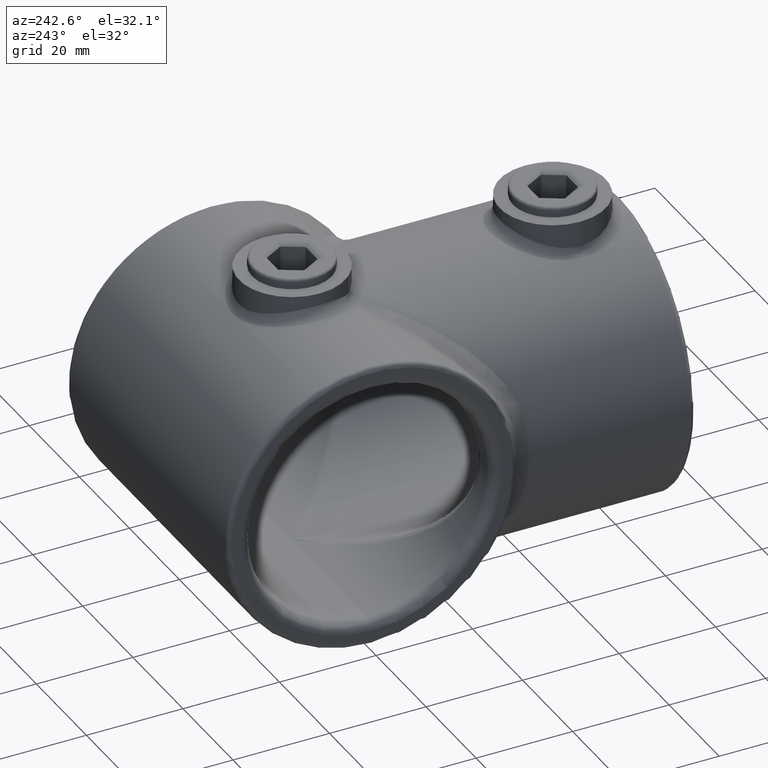
[diagram: clean part render]
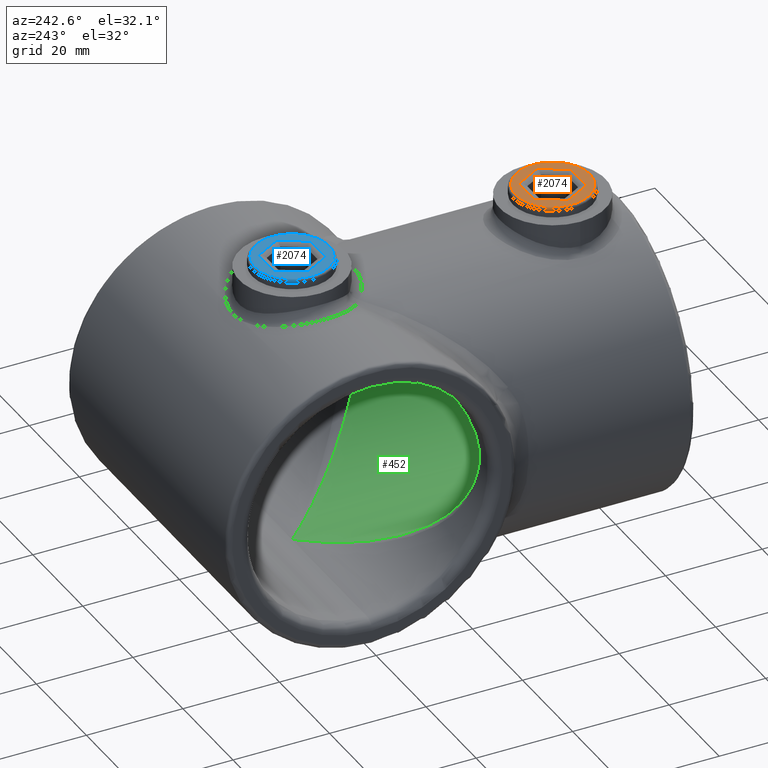
[diagram: same view with three faces highlighted in distinct colors, each labeled with its STEP entity id]
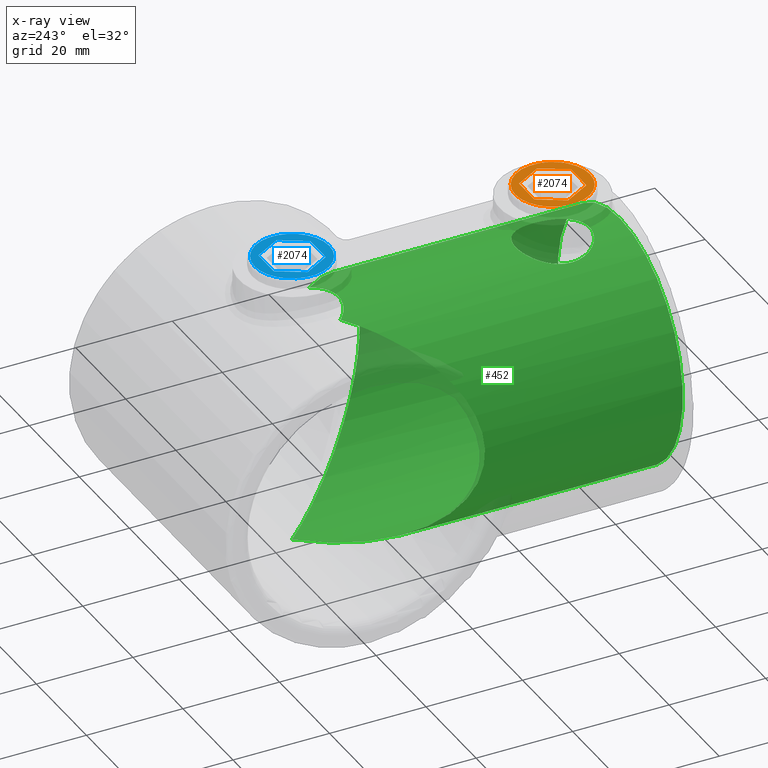
[diagram: x-ray of the same camera — body ghosted, the three highlighted faces saturated]
A machine part, auxiliary view with three faces highlighted in distinct colors.
The next image is the same camera in x-ray (body ghosted, the three faces saturated) — at least one of them is partly hidden behind the body in this view.
Their STEP definitions:

[orange] entity #2074 — the highlighted planar face has unit normal (0, 0, 1).
#73 = ORIENTED_EDGE ( 'NONE', *, *, #3537, .T. ) ;
#93 = CARTESIAN_POINT ( 'NONE',  ( 6.202525231651947912, 12.99999999999999822, 3.469446951953614189E-15 ) ) ;
#172 = VERTEX_POINT ( 'NONE', #93 ) ;
#275 = VECTOR ( 'NONE', #3235, 1000.000000000000227 ) ;
#354 = DIRECTION ( 'NONE',  ( 0.000000000000000000, 1.000000000000000000, 0.000000000000000000 ) ) ;
#365 = EDGE_CURVE ( 'NONE', #172, #822, #1710, .T. ) ;
#474 = VERTEX_POINT ( 'NONE', #3267 ) ;
#499 = CARTESIAN_POINT ( 'NONE',  ( -3.101262615825973956, 12.99999999999999822, 5.371544418224549311 ) ) ;
#523 = FACE_BOUND ( 'NONE', #1363, .T. ) ;
#621 = LINE ( 'NONE', #2669, #2212 ) ;
#626 = CARTESIAN_POINT ( 'NONE',  ( -3.338806356441556655, 12.99999999999999822, -4.960106590458406295 ) ) ;
#767 = ORIENTED_EDGE ( 'NONE', *, *, #2850, .T. ) ;
#789 = EDGE_CURVE ( 'NONE', #1464, #1358, #621, .T. ) ;
#822 = VERTEX_POINT ( 'NONE', #3206 ) ;
#874 = ORIENTED_EDGE ( 'NONE', *, *, #1795, .T. ) ;
#880 = CARTESIAN_POINT ( 'NONE',  ( 0.000000000000000000, 12.99999999999999822, 0.000000000000000000 ) ) ;
#892 = CARTESIAN_POINT ( 'NONE',  ( -2.626175134594816107, 12.99999999999999822, 5.371544418224551087 ) ) ;
#906 = VECTOR ( 'NONE', #3482, 1000.000000000000000 ) ;
#908 = CARTESIAN_POINT ( 'NONE',  ( 5.964981491036368766, 12.99999999999999822, -0.4114378277661444594 ) ) ;
#974 = DIRECTION ( 'NONE',  ( -1.110223024625156294E-16, 0.000000000000000000, 1.000000000000000000 ) ) ;
#1068 = CARTESIAN_POINT ( 'NONE',  ( -5.964981491036358108, 12.99999999999999822, 0.4114378277661513428 ) ) ;
#1265 = ORIENTED_EDGE ( 'NONE', *, *, #3778, .T. ) ;
#1358 = VERTEX_POINT ( 'NONE', #2866 ) ;
#1363 = EDGE_LOOP ( 'NONE', ( #874, #767, #2966, #3181, #1575, #1265 ) ) ;
#1381 = DIRECTION ( 'NONE',  ( -0.4999999999999996669, 0.000000000000000000, -0.8660254037844388186 ) ) ;
#1399 = CIRCLE ( 'NONE', #3635, 7.750000000000001776 ) ;
#1464 = VERTEX_POINT ( 'NONE', #3792 ) ;
#1575 = ORIENTED_EDGE ( 'NONE', *, *, #365, .T. ) ;
#1613 = LINE ( 'NONE', #1068, #2562 ) ;
#1710 = LINE ( 'NONE', #2931, #275 ) ;
#1748 = VECTOR ( 'NONE', #3527, 1000.000000000000000 ) ;
#1795 = EDGE_CURVE ( 'NONE', #2822, #474, #1613, .T. ) ;
#1846 = LINE ( 'NONE', #908, #1748 ) ;
#1954 = CARTESIAN_POINT ( 'NONE',  ( 0.000000000000000000, 12.99999999999999822, 0.000000000000000000 ) ) ;
#2074 = ADVANCED_FACE ( 'NONE', ( #523, #3554 ), #2906, .T. ) ;
#2174 = DIRECTION ( 'NONE',  ( 0.000000000000000000, 1.000000000000000000, 0.000000000000000000 ) ) ;
#2212 = VECTOR ( 'NONE', #2871, 1000.000000000000000 ) ;
#2224 = EDGE_LOOP ( 'NONE', ( #73 ) ) ;
#2416 = VECTOR ( 'NONE', #2836, 1000.000000000000000 ) ;
#2562 = VECTOR ( 'NONE', #1381, 1000.000000000000000 ) ;
#2669 = CARTESIAN_POINT ( 'NONE',  ( 2.626175134594816107, 12.99999999999999822, -5.371544418224551087 ) ) ;
#2822 = VERTEX_POINT ( 'NONE', #499 ) ;
#2836 = DIRECTION ( 'NONE',  ( 0.4999999999999998335, 0.000000000000000000, -0.8660254037844387076 ) ) ;
#2850 = EDGE_CURVE ( 'NONE', #474, #1464, #3262, .T. ) ;
#2866 = CARTESIAN_POINT ( 'NONE',  ( 3.101262615825977509, 12.99999999999999822, -5.371544418224558193 ) ) ;
#2871 = DIRECTION ( 'NONE',  ( 1.000000000000000000, 0.000000000000000000, 1.110223024625156294E-16 ) ) ;
#2906 = PLANE ( 'NONE',  #4015 ) ;
#2931 = CARTESIAN_POINT ( 'NONE',  ( 3.338806356441556655, 12.99999999999999822, 4.960106590458408071 ) ) ;
#2966 = ORIENTED_EDGE ( 'NONE', *, *, #789, .T. ) ;
#3005 = VERTEX_POINT ( 'NONE', #3548 ) ;
#3181 = ORIENTED_EDGE ( 'NONE', *, *, #3224, .T. ) ;
#3206 = CARTESIAN_POINT ( 'NONE',  ( 3.101262615825984614, 12.99999999999999822, 5.371544418224551087 ) ) ;
#3224 = EDGE_CURVE ( 'NONE', #1358, #172, #1846, .T. ) ;
#3235 = DIRECTION ( 'NONE',  ( -0.4999999999999992784, 0.000000000000000000, 0.8660254037844389297 ) ) ;
#3262 = LINE ( 'NONE', #626, #2416 ) ;
#3267 = CARTESIAN_POINT ( 'NONE',  ( -6.202525231651947912, 12.99999999999999822, 0.000000000000000000 ) ) ;
#3482 = DIRECTION ( 'NONE',  ( -1.000000000000000000, 0.000000000000000000, -2.775557561562891351E-16 ) ) ;
#3527 = DIRECTION ( 'NONE',  ( 0.4999999999999997224, 0.000000000000000000, 0.8660254037844388186 ) ) ;
#3537 = EDGE_CURVE ( 'NONE', #3005, #3005, #1399, .T. ) ;
#3548 = CARTESIAN_POINT ( 'NONE',  ( -8.604228440844963188E-16, 12.99999999999999822, 7.750000000000001776 ) ) ;
#3554 = FACE_OUTER_BOUND ( 'NONE', #2224, .T. ) ;
#3635 = AXIS2_PLACEMENT_3D ( 'NONE', #880, #2174, #4051 ) ;
#3778 = EDGE_CURVE ( 'NONE', #822, #2822, #4081, .T. ) ;
#3792 = CARTESIAN_POINT ( 'NONE',  ( -3.101262615825967295, 12.99999999999999822, -5.371544418224547535 ) ) ;
#4015 = AXIS2_PLACEMENT_3D ( 'NONE', #1954, #354, #974 ) ;
#4051 = DIRECTION ( 'NONE',  ( -1.110223024625156294E-16, 0.000000000000000000, 1.000000000000000000 ) ) ;
#4081 = LINE ( 'NONE', #892, #906 ) ;

[blue] entity #2074 — the highlighted planar face has unit normal (0, 0, 1).
#73 = ORIENTED_EDGE ( 'NONE', *, *, #3537, .T. ) ;
#93 = CARTESIAN_POINT ( 'NONE',  ( 6.202525231651947912, 12.99999999999999822, 3.469446951953614189E-15 ) ) ;
#172 = VERTEX_POINT ( 'NONE', #93 ) ;
#275 = VECTOR ( 'NONE', #3235, 1000.000000000000227 ) ;
#354 = DIRECTION ( 'NONE',  ( 0.000000000000000000, 1.000000000000000000, 0.000000000000000000 ) ) ;
#365 = EDGE_CURVE ( 'NONE', #172, #822, #1710, .T. ) ;
#474 = VERTEX_POINT ( 'NONE', #3267 ) ;
#499 = CARTESIAN_POINT ( 'NONE',  ( -3.101262615825973956, 12.99999999999999822, 5.371544418224549311 ) ) ;
#523 = FACE_BOUND ( 'NONE', #1363, .T. ) ;
#621 = LINE ( 'NONE', #2669, #2212 ) ;
#626 = CARTESIAN_POINT ( 'NONE',  ( -3.338806356441556655, 12.99999999999999822, -4.960106590458406295 ) ) ;
#767 = ORIENTED_EDGE ( 'NONE', *, *, #2850, .T. ) ;
#789 = EDGE_CURVE ( 'NONE', #1464, #1358, #621, .T. ) ;
#822 = VERTEX_POINT ( 'NONE', #3206 ) ;
#874 = ORIENTED_EDGE ( 'NONE', *, *, #1795, .T. ) ;
#880 = CARTESIAN_POINT ( 'NONE',  ( 0.000000000000000000, 12.99999999999999822, 0.000000000000000000 ) ) ;
#892 = CARTESIAN_POINT ( 'NONE',  ( -2.626175134594816107, 12.99999999999999822, 5.371544418224551087 ) ) ;
#906 = VECTOR ( 'NONE', #3482, 1000.000000000000000 ) ;
#908 = CARTESIAN_POINT ( 'NONE',  ( 5.964981491036368766, 12.99999999999999822, -0.4114378277661444594 ) ) ;
#974 = DIRECTION ( 'NONE',  ( -1.110223024625156294E-16, 0.000000000000000000, 1.000000000000000000 ) ) ;
#1068 = CARTESIAN_POINT ( 'NONE',  ( -5.964981491036358108, 12.99999999999999822, 0.4114378277661513428 ) ) ;
#1265 = ORIENTED_EDGE ( 'NONE', *, *, #3778, .T. ) ;
#1358 = VERTEX_POINT ( 'NONE', #2866 ) ;
#1363 = EDGE_LOOP ( 'NONE', ( #874, #767, #2966, #3181, #1575, #1265 ) ) ;
#1381 = DIRECTION ( 'NONE',  ( -0.4999999999999996669, 0.000000000000000000, -0.8660254037844388186 ) ) ;
#1399 = CIRCLE ( 'NONE', #3635, 7.750000000000001776 ) ;
#1464 = VERTEX_POINT ( 'NONE', #3792 ) ;
#1575 = ORIENTED_EDGE ( 'NONE', *, *, #365, .T. ) ;
#1613 = LINE ( 'NONE', #1068, #2562 ) ;
#1710 = LINE ( 'NONE', #2931, #275 ) ;
#1748 = VECTOR ( 'NONE', #3527, 1000.000000000000000 ) ;
#1795 = EDGE_CURVE ( 'NONE', #2822, #474, #1613, .T. ) ;
#1846 = LINE ( 'NONE', #908, #1748 ) ;
#1954 = CARTESIAN_POINT ( 'NONE',  ( 0.000000000000000000, 12.99999999999999822, 0.000000000000000000 ) ) ;
#2074 = ADVANCED_FACE ( 'NONE', ( #523, #3554 ), #2906, .T. ) ;
#2174 = DIRECTION ( 'NONE',  ( 0.000000000000000000, 1.000000000000000000, 0.000000000000000000 ) ) ;
#2212 = VECTOR ( 'NONE', #2871, 1000.000000000000000 ) ;
#2224 = EDGE_LOOP ( 'NONE', ( #73 ) ) ;
#2416 = VECTOR ( 'NONE', #2836, 1000.000000000000000 ) ;
#2562 = VECTOR ( 'NONE', #1381, 1000.000000000000000 ) ;
#2669 = CARTESIAN_POINT ( 'NONE',  ( 2.626175134594816107, 12.99999999999999822, -5.371544418224551087 ) ) ;
#2822 = VERTEX_POINT ( 'NONE', #499 ) ;
#2836 = DIRECTION ( 'NONE',  ( 0.4999999999999998335, 0.000000000000000000, -0.8660254037844387076 ) ) ;
#2850 = EDGE_CURVE ( 'NONE', #474, #1464, #3262, .T. ) ;
#2866 = CARTESIAN_POINT ( 'NONE',  ( 3.101262615825977509, 12.99999999999999822, -5.371544418224558193 ) ) ;
#2871 = DIRECTION ( 'NONE',  ( 1.000000000000000000, 0.000000000000000000, 1.110223024625156294E-16 ) ) ;
#2906 = PLANE ( 'NONE',  #4015 ) ;
#2931 = CARTESIAN_POINT ( 'NONE',  ( 3.338806356441556655, 12.99999999999999822, 4.960106590458408071 ) ) ;
#2966 = ORIENTED_EDGE ( 'NONE', *, *, #789, .T. ) ;
#3005 = VERTEX_POINT ( 'NONE', #3548 ) ;
#3181 = ORIENTED_EDGE ( 'NONE', *, *, #3224, .T. ) ;
#3206 = CARTESIAN_POINT ( 'NONE',  ( 3.101262615825984614, 12.99999999999999822, 5.371544418224551087 ) ) ;
#3224 = EDGE_CURVE ( 'NONE', #1358, #172, #1846, .T. ) ;
#3235 = DIRECTION ( 'NONE',  ( -0.4999999999999992784, 0.000000000000000000, 0.8660254037844389297 ) ) ;
#3262 = LINE ( 'NONE', #626, #2416 ) ;
#3267 = CARTESIAN_POINT ( 'NONE',  ( -6.202525231651947912, 12.99999999999999822, 0.000000000000000000 ) ) ;
#3482 = DIRECTION ( 'NONE',  ( -1.000000000000000000, 0.000000000000000000, -2.775557561562891351E-16 ) ) ;
#3527 = DIRECTION ( 'NONE',  ( 0.4999999999999997224, 0.000000000000000000, 0.8660254037844388186 ) ) ;
#3537 = EDGE_CURVE ( 'NONE', #3005, #3005, #1399, .T. ) ;
#3548 = CARTESIAN_POINT ( 'NONE',  ( -8.604228440844963188E-16, 12.99999999999999822, 7.750000000000001776 ) ) ;
#3554 = FACE_OUTER_BOUND ( 'NONE', #2224, .T. ) ;
#3635 = AXIS2_PLACEMENT_3D ( 'NONE', #880, #2174, #4051 ) ;
#3778 = EDGE_CURVE ( 'NONE', #822, #2822, #4081, .T. ) ;
#3792 = CARTESIAN_POINT ( 'NONE',  ( -3.101262615825967295, 12.99999999999999822, -5.371544418224547535 ) ) ;
#4015 = AXIS2_PLACEMENT_3D ( 'NONE', #1954, #354, #974 ) ;
#4051 = DIRECTION ( 'NONE',  ( -1.110223024625156294E-16, 0.000000000000000000, 1.000000000000000000 ) ) ;
#4081 = LINE ( 'NONE', #892, #906 ) ;

[green] entity #452 — the highlighted cylindrical surface (bore or boss wall) has radius 25 mm, axis along (-0, -1, -0).
#20 = EDGE_CURVE ( 'NONE', #437, #2561, #2781, .T. ) ;
#32 = DIRECTION ( 'NONE',  ( -0.000000000000000000, -1.000000000000000000, -0.000000000000000000 ) ) ;
#144 = CARTESIAN_POINT ( 'NONE',  ( 5.898972391248183733, 60.75908464470701631, 24.29764128695998693 ) ) ;
#154 = CARTESIAN_POINT ( 'NONE',  ( -2.921343065034001985, 58.88486869193023665, 24.83469711102791422 ) ) ;
#191 = CARTESIAN_POINT ( 'NONE',  ( 4.659846650615250496, 7.943803693538966648, 24.56550976411219267 ) ) ;
#193 = CARTESIAN_POINT ( 'NONE',  ( 0.000000000000000000, 68.00000000000000000, -24.99999999999999645 ) ) ;
#204 = CARTESIAN_POINT ( 'NONE',  ( -4.447481860664472819, 7.801466709018616719, 24.60210313679657190 ) ) ;
#218 = CARTESIAN_POINT ( 'NONE',  ( -5.030792869501231834, 8.264707833344070664, 24.48937507106241895 ) ) ;
#232 = CARTESIAN_POINT ( 'NONE',  ( -7.637240855225110536, 13.99693461799787109, 23.80487799466419929 ) ) ;
#240 = CARTESIAN_POINT ( 'NONE',  ( 7.624999999999986677, 13.99999999999999822, 23.80880876902496368 ) ) ;
#246 = CARTESIAN_POINT ( 'NONE',  ( -0.2531567682109435169, 21.62493822422564804, 24.99998115838933188 ) ) ;
#279 = CARTESIAN_POINT ( 'NONE',  ( -6.301761823074548907, 61.19409723107948906, 24.19272200322319577 ) ) ;
#332 =( BOUNDED_CURVE ( )  B_SPLINE_CURVE ( 3, ( #193, #2443, #3021, #279 ),
 .UNSPECIFIED., .F., .F. ) 
 B_SPLINE_CURVE_WITH_KNOTS ( ( 4, 4 ),
 ( 4.712388980384689674, 7.599162411308274301 ),
 .UNSPECIFIED. ) 
 CURVE ( )  GEOMETRIC_REPRESENTATION_ITEM ( )  RATIONAL_B_SPLINE_CURVE ( ( 1.000000000000000000, 0.4180434532470354014, 0.4180434532470354014, 1.000000000000000000 ) ) 
 REPRESENTATION_ITEM ( '' )  );
#437 = VERTEX_POINT ( 'NONE', #1296 ) ;
#448 = CARTESIAN_POINT ( 'NONE',  ( -1.197535897547674866, 58.45677539210313967, 24.97309209629023385 ) ) ;
#452 = ADVANCED_FACE ( 'NONE', ( #582, #2717, #1857 ), #4041, .F. ) ;
#463 = VERTEX_POINT ( 'NONE', #2574 ) ;
#517 = CARTESIAN_POINT ( 'NONE',  ( 6.198552640534425784, 9.552486101007614749, 24.21979310777088656 ) ) ;
#534 = CARTESIAN_POINT ( 'NONE',  ( 1.987973315103579219, 6.634452307421962125, 24.92199381285342596 ) ) ;
#550 = CARTESIAN_POINT ( 'NONE',  ( -7.612543128637531353, 13.49699795111162892, 23.81280872462432541 ) ) ;
#556 = CARTESIAN_POINT ( 'NONE',  ( 5.040554526462226015, 19.74262615698709311, 24.48920166236201368 ) ) ;
#559 = CARTESIAN_POINT ( 'NONE',  ( -4.648761521243394590, 20.04908387233548339, 24.56475787222400342 ) ) ;
#573 = CARTESIAN_POINT ( 'NONE',  ( -1.008505099369361835, 21.56220618766863950, 24.98090808176181099 ) ) ;
#582 = FACE_OUTER_BOUND ( 'NONE', #2564, .T. ) ;
#766 = CARTESIAN_POINT ( 'NONE',  ( 3.183501431581415186, 59.00453672251656911, 24.79795829147836983 ) ) ;
#779 = CARTESIAN_POINT ( 'NONE',  ( -4.506386825139651719, 59.69023257769597990, 24.59185877542659782 ) ) ;
#816 = ORIENTED_EDGE ( 'NONE', *, *, #4110, .F. ) ;
#826 = CARTESIAN_POINT ( 'NONE',  ( 6.613380367851313224, 10.17232916946265142, 24.11109562406745610 ) ) ;
#838 = CARTESIAN_POINT ( 'NONE',  ( -5.746456444308763345, 19.03651626538897901, 24.33326843753103219 ) ) ;
#847 = CARTESIAN_POINT ( 'NONE',  ( 7.574939601106295939, 12.99508855892533177, 23.82500341734851190 ) ) ;
#868 = CARTESIAN_POINT ( 'NONE',  ( -4.450013709171524390, 20.19670438459453976, 24.60164274860606426 ) ) ;
#886 = CARTESIAN_POINT ( 'NONE',  ( 3.388449417178503786, 7.151251449488688294, 24.77360043833564518 ) ) ;
#1084 = CARTESIAN_POINT ( 'NONE',  ( 4.494035789254406943, 59.68241188247445450, 24.59412628641595333 ) ) ;
#1089 = CARTESIAN_POINT ( 'NONE',  ( 0.000000000000000000, 68.00000000000000000, -24.99999999999999645 ) ) ;
#1100 = CARTESIAN_POINT ( 'NONE',  ( -6.301761823074548907, 61.19409723107948906, 24.19272200322319577 ) ) ;
#1110 = CARTESIAN_POINT ( 'NONE',  ( -5.461757653138502810, 60.36938346026881419, 24.40086862338844753 ) ) ;
#1143 = CARTESIAN_POINT ( 'NONE',  ( 5.041752346281424657, 8.258441854446843422, 24.48895214811044596 ) ) ;
#1157 = CARTESIAN_POINT ( 'NONE',  ( 5.565872056497592091, 8.782459759072326122, 24.37320412377327727 ) ) ;
#1165 = VERTEX_POINT ( 'NONE', #1089 ) ;
#1172 = CARTESIAN_POINT ( 'NONE',  ( -4.036048993750373626, 7.526035342976403086, 24.67293825580087230 ) ) ;
#1184 = CARTESIAN_POINT ( 'NONE',  ( -3.833767512333940086, 20.60964602901277232, 24.70781290257799512 ) ) ;
#1193 = CARTESIAN_POINT ( 'NONE',  ( 3.824793484731123794, 20.61536953270599426, 24.70930600292921042 ) ) ;
#1196 = CARTESIAN_POINT ( 'NONE',  ( 0.9977691887047605013, 21.57603748124650167, 24.98493532761329661 ) ) ;
#1217 = CARTESIAN_POINT ( 'NONE',  ( 6.846823129338923231, 17.39260563976431584, 24.04497623410375340 ) ) ;
#1296 = CARTESIAN_POINT ( 'NONE',  ( -6.301761823074548907, 61.19409723107948906, 24.19272200322319577 ) ) ;
#1318 = DIRECTION ( 'NONE',  ( 0.000000000000000000, 0.000000000000000000, 1.000000000000000000 ) ) ;
#1395 = CARTESIAN_POINT ( 'NONE',  ( 4.743714161365892856, 59.84585950284035505, 24.54702652265839546 ) ) ;
#1412 = CARTESIAN_POINT ( 'NONE',  ( 1.178473716321879472, 58.43770054534978442, 24.97911698871308062 ) ) ;
#1425 = CARTESIAN_POINT ( 'NONE',  ( -2.362536365921073855, 58.69741775949065499, 24.89489372215549068 ) ) ;
#1451 = CARTESIAN_POINT ( 'NONE',  ( 2.346506560850491585, 58.70918116935583697, 24.89124044382296219 ) ) ;
#1466 = CARTESIAN_POINT ( 'NONE',  ( 7.221044020827889653, 11.53824818125508678, 23.93454355583152804 ) ) ;
#1474 = ORIENTED_EDGE ( 'NONE', *, *, #20, .T. ) ;
#1481 = CARTESIAN_POINT ( 'NONE',  ( 5.732390297541706481, 8.965878091797346627, 24.33446512792617611 ) ) ;
#1493 = CARTESIAN_POINT ( 'NONE',  ( -1.984911021543398268, 6.620927443614977648, 24.92591712721058173 ) ) ;
#1503 = CARTESIAN_POINT ( 'NONE',  ( 4.658340416036716114, 20.05739414463142722, 24.56580373029862230 ) ) ;
#1508 = CARTESIAN_POINT ( 'NONE',  ( -2.461853608082956058, 6.765917713638597064, 24.88286969601450593 ) ) ;
#1526 = CARTESIAN_POINT ( 'NONE',  ( 6.048749732343347674, 9.350773334685374749, 24.25776408206416690 ) ) ;
#1609 = CARTESIAN_POINT ( 'NONE',  ( 0.000000000000000000, 0.000000000000000000, 0.000000000000000000 ) ) ;
#1654 = DIRECTION ( 'NONE',  ( 0.000000000000000000, 0.000000000000000000, -1.000000000000000000 ) ) ;
#1745 = CARTESIAN_POINT ( 'NONE',  ( -1.493577517179572878, 58.50576009132590372, 24.95703416032452182 ) ) ;
#1759 = CARTESIAN_POINT ( 'NONE',  ( 2.057436443159792017, 58.62943906300475305, 24.91692651073416442 ) ) ;
#1763 = AXIS2_PLACEMENT_3D ( 'NONE', #1609, #2559, #1318 ) ;
#1779 = CARTESIAN_POINT ( 'NONE',  ( -7.563991461711624176, 14.99469888138134621, 23.82827509113423403 ) ) ;
#1787 = CARTESIAN_POINT ( 'NONE',  ( 7.367383413625265831, 12.01874776858991112, 23.88990401013302645 ) ) ;
#1792 = CARTESIAN_POINT ( 'NONE',  ( -3.395356048079686939, 20.84583685217371851, 24.77277628969512335 ) ) ;
#1809 = CARTESIAN_POINT ( 'NONE',  ( -6.849349150729525881, 10.61260874263449949, 24.04425170248521937 ) ) ;
#1819 = CARTESIAN_POINT ( 'NONE',  ( 3.386156229792321337, 20.84997084846986937, 24.77393670983869711 ) ) ;
#1823 = CARTESIAN_POINT ( 'NONE',  ( -5.032826739687871864, 19.73350280232121179, 24.48895604166634854 ) ) ;
#1835 = CARTESIAN_POINT ( 'NONE',  ( -6.057882534485952597, 9.342924015651206560, 24.25661639321867824 ) ) ;
#1857 = FACE_OUTER_BOUND ( 'NONE', #3080, .T. ) ;
#1909 = CARTESIAN_POINT ( 'NONE',  ( 7.624999999999985789, 14.00000000000000000, 23.80880876902496723 ) ) ;
#1968 = CARTESIAN_POINT ( 'NONE',  ( 0.000000000000000000, 68.00000000000000000, -24.99999999999999645 ) ) ;
#1985 = CARTESIAN_POINT ( 'NONE',  ( 44.56991241727288866, 19.86449458934528423, 14.22456834023076944 ) ) ;
#2040 = CARTESIAN_POINT ( 'NONE',  ( 2.908861210170392564, 58.89658532589303519, 24.83180360610738902 ) ) ;
#2056 = CARTESIAN_POINT ( 'NONE',  ( -4.751984401448805961, 59.85157604797398534, 24.54540569654037441 ) ) ;
#2096 = CARTESIAN_POINT ( 'NONE',  ( -3.996086295852418147, 59.39110749178983184, 24.67991763690512030 ) ) ;
#2107 = CARTESIAN_POINT ( 'NONE',  ( 3.827261590886245735, 7.386093951032468574, 24.70891558714926717 ) ) ;
#2126 = CARTESIAN_POINT ( 'NONE',  ( 7.135450569502692630, 11.30032034237444449, 23.96028666805974794 ) ) ;
#2133 = CARTESIAN_POINT ( 'NONE',  ( 5.731563743611696182, 19.03506446305436839, 24.33466015887331579 ) ) ;
#2137 = CARTESIAN_POINT ( 'NONE',  ( -7.562875551298476218, 12.99663239399498949, 23.82862968581559215 ) ) ;
#2144 = CARTESIAN_POINT ( 'NONE',  ( 1.735177294240058732, 21.42917225034852891, 24.94092608399476063 ) ) ;
#2149 = CARTESIAN_POINT ( 'NONE',  ( -7.525210577754439356, 12.74505800106580011, 23.84059330878521621 ) ) ;
#2151 = VERTEX_POINT ( 'NONE', #1909 ) ;
#2159 = CARTESIAN_POINT ( 'NONE',  ( 6.048023593877458914, 18.65017286798013885, 24.25794547365545384 ) ) ;
#2209 = EDGE_CURVE ( 'NONE', #2561, #1165, #3297, .T. ) ;
#2372 = CARTESIAN_POINT ( 'NONE',  ( 6.301761823074544466, 61.19409723107948906, 24.19272200322320288 ) ) ;
#2426 = CARTESIAN_POINT ( 'NONE',  ( 2.466949535381538716, 6.780755531006973591, 24.87914736278857930 ) ) ;
#2441 = CARTESIAN_POINT ( 'NONE',  ( -7.232986855992652231, 16.46419246294570726, 23.93164149630684534 ) ) ;
#2443 = CARTESIAN_POINT ( 'NONE',  ( -39.54510636411628610, 25.29128512675440987, -25.00000000000000000 ) ) ;
#2453 = CARTESIAN_POINT ( 'NONE',  ( -5.216959178462502678, 8.433508707314302910, 24.45027126291932618 ) ) ;
#2461 = CARTESIAN_POINT ( 'NONE',  ( 7.624999999999984901, 14.50701469564653578, 23.80880876902496013 ) ) ;
#2466 = CARTESIAN_POINT ( 'NONE',  ( -6.851283675898572234, 17.38352705704663848, 24.04369929023160424 ) ) ;
#2482 = CARTESIAN_POINT ( 'NONE',  ( -5.218946202275246193, 19.56463239821132660, 24.44984722176353031 ) ) ;
#2559 = DIRECTION ( 'NONE',  ( 0.000000000000000000, 1.000000000000000000, 0.000000000000000000 ) ) ;
#2561 = VERTEX_POINT ( 'NONE', #2618 ) ;
#2564 = EDGE_LOOP ( 'NONE', ( #4003, #1474, #2821 ) ) ;
#2574 = CARTESIAN_POINT ( 'NONE',  ( 0.000000000000000000, 0.000000000000000000, 24.99999999999999645 ) ) ;
#2614 = AXIS2_PLACEMENT_3D ( 'NONE', #3582, #32, #1654 ) ;
#2618 = CARTESIAN_POINT ( 'NONE',  ( 6.301761823074544466, 61.19409723107948906, 24.19272200322320288 ) ) ;
#2683 = CARTESIAN_POINT ( 'NONE',  ( 0.5885876564209104878, 58.37463111187876308, 25.00012176089329685 ) ) ;
#2714 = EDGE_LOOP ( 'NONE', ( #2720 ) ) ;
#2717 = FACE_BOUND ( 'NONE', #2714, .T. ) ;
#2720 = ORIENTED_EDGE ( 'NONE', *, *, #3492, .F. ) ;
#2736 = CARTESIAN_POINT ( 'NONE',  ( -3.384788619207252047, 7.162908973373580679, 24.77079655181747597 ) ) ;
#2753 = CARTESIAN_POINT ( 'NONE',  ( -6.059972305749166566, 18.65442036758613398, 24.25609593163329691 ) ) ;
#2767 = CARTESIAN_POINT ( 'NONE',  ( -7.526922525258536112, 15.24489144085757708, 23.84005278734265332 ) ) ;
#2776 = CARTESIAN_POINT ( 'NONE',  ( 7.230014589311887008, 16.47298383127514754, 23.93254600123860243 ) ) ;
#2777 = CARTESIAN_POINT ( 'NONE',  ( 7.624999999999986677, 13.99999999999999822, 23.80880876902496368 ) ) ;
#2781 = B_SPLINE_CURVE_WITH_KNOTS ( 'NONE', 3,
 ( #1100, #3685, #1110, #2056, #779, #2096, #3633, #154, #1425, #1745, #448, #3336, #3962, #2683, #1412, #1759, #1451, #2040, #766, #3974, #3036, #1084, #1395, #3646, #144, #2372 ),
 .UNSPECIFIED., .F., .F.,
 ( 4, 2, 2, 2, 2, 2, 2, 2, 2, 2, 2, 2, 4 ),
 ( 3.469446951953614189E-18, 0.001780252196398590713, 0.002670378294597884443, 0.003560504392797177956, 0.005340756589195774090, 0.006230882687395073241, 0.007121008785594371525, 0.008901260981992967225, 0.009791387080192264641, 0.01068151317839156032, 0.01157163927659085947, 0.01246176537479015516, 0.01424201757118874825 ),
 .UNSPECIFIED. ) ;
#2783 = CARTESIAN_POINT ( 'NONE',  ( -7.378737004201020966, 15.98736881979525393, 23.88650159904018366 ) ) ;
#2792 = CARTESIAN_POINT ( 'NONE',  ( -0.5073330409539152930, 21.61227023599559516, 24.99610898340867138 ) ) ;
#2818 = CARTESIAN_POINT ( 'NONE',  ( 7.574914569875138781, 15.00563491338716737, 23.82501284584764534 ) ) ;
#2821 = ORIENTED_EDGE ( 'NONE', *, *, #2209, .T. ) ;
#2858 = B_SPLINE_CURVE_WITH_KNOTS ( 'NONE', 3,
 ( #2777, #3721, #847, #4026, #1787, #1466, #2126, #3085, #826, #517, #1526, #1481, #1157, #1143, #191, #2107, #886, #3076, #2426, #534, #3382, #3101, #3711, #4029, #3437, #1493, #1508, #3737, #2736, #3750, #1172, #204, #3408, #218, #2453, #3395, #1835, #3060, #1809, #3694, #3724, #2149, #2137, #550, #232, #4054, #1779, #2767, #2783, #2441, #2466, #4008, #2753, #838, #2482, #1823, #559, #868, #1184, #1792, #3426, #4019, #4043, #573, #2792, #246, #3118, #1196, #2144, #3461, #3732, #4035, #1819, #1193, #1503, #556, #3745, #2133, #2159, #4061, #3141, #1217, #2776, #3154, #2818, #2461, #240 ),
 .UNSPECIFIED., .T., .F.,
 ( 4, 2, 2, 2, 2, 2, 2, 2, 2, 2, 2, 2, 2, 2, 2, 2, 2, 2, 2, 2, 2, 2, 1, 2, 2, 2, 2, 2, 2, 2, 2, 2, 2, 2, 2, 2, 2, 2, 2, 2, 2, 2, 2, 4 ),
 ( 0.000000000000000000, 0.001498703355425727579, 0.002248055033138593971, 0.002997406710851460796, 0.004496110066277194013, 0.005245461743990061272, 0.005994813421702929399, 0.007493516777128666519, 0.008992220132554403639, 0.009741571810267274367, 0.01049092348798014336, 0.01198962684340588308, 0.01348833019883162107, 0.01498703355425735732, 0.01573638523197022632, 0.01648573690968309705, 0.01723508858739596777, 0.01798444026510884197, 0.01948314362053458690, 0.02098184697596033182, 0.02248055033138608022, 0.02322990200909895095, 0.02397925368681182168, 0.02472860536452469588, 0.02547795704223757354, 0.02697666039766332194, 0.02847536375308907033, 0.02997406710851481526, 0.03072341878622769293, 0.03147277046394056366, 0.03297147381936631205, 0.03447017717479206739, 0.03521952885250494159, 0.03596888053021781578, 0.03746758388564356418, 0.03821693556335643838, 0.03896628724106931257, 0.04046499059649506097, 0.04196369395192080937, 0.04271304562963368356, 0.04346239730734655776, 0.04496110066277231310, 0.04645980401819806843, 0.04795850737362381683 ),
 .UNSPECIFIED. ) ;
#3013 = EDGE_CURVE ( 'NONE', #1165, #437, #332, .T. ) ;
#3021 = CARTESIAN_POINT ( 'NONE',  ( -44.56991241727288866, 19.86449458934529133, 14.22456834023075878 ) ) ;
#3036 = CARTESIAN_POINT ( 'NONE',  ( 3.982300386315526630, 59.38363783753575831, 24.68215325089015266 ) ) ;
#3060 = CARTESIAN_POINT ( 'NONE',  ( -6.609810204236293174, 10.16637161560983316, 24.11206728410836320 ) ) ;
#3076 = CARTESIAN_POINT ( 'NONE',  ( 2.701155206758633742, 6.865158317157441736, 24.85471741102222154 ) ) ;
#3080 = EDGE_LOOP ( 'NONE', ( #816 ) ) ;
#3085 = CARTESIAN_POINT ( 'NONE',  ( 6.847703879782135239, 10.60901534812212788, 24.04472748351469846 ) ) ;
#3101 = CARTESIAN_POINT ( 'NONE',  ( 1.002517140352033209, 6.424498978325215326, 24.98477028980511605 ) ) ;
#3118 = CARTESIAN_POINT ( 'NONE',  ( 0.5007108719245280115, 21.62512286543174866, 25.00003747395566478 ) ) ;
#3141 = CARTESIAN_POINT ( 'NONE',  ( 6.612736129173780952, 17.82876949042401904, 24.11127232247208951 ) ) ;
#3154 = CARTESIAN_POINT ( 'NONE',  ( 7.378724766867549967, 15.98621578252346076, 23.88650222741972939 ) ) ;
#3213 = CARTESIAN_POINT ( 'NONE',  ( 39.54510636411629321, 25.29128512675440987, -24.99999999999998579 ) ) ;
#3297 =( BOUNDED_CURVE ( )  B_SPLINE_CURVE ( 3, ( #3879, #1985, #3213, #1968 ),
 .UNSPECIFIED., .F., .T. ) 
 B_SPLINE_CURVE_WITH_KNOTS ( ( 4, 4 ),
 ( 4.967208203050898163, 7.853981633974482790 ),
 .UNSPECIFIED. ) 
 CURVE ( )  GEOMETRIC_REPRESENTATION_ITEM ( )  RATIONAL_B_SPLINE_CURVE ( ( 1.000000000000000000, 0.4180434532470354014, 0.4180434532470354014, 1.000000000000000000 ) ) 
 REPRESENTATION_ITEM ( '' )  );
#3336 = CARTESIAN_POINT ( 'NONE',  ( -0.5998553083481931170, 58.39134975208964562, 24.99459130861626477 ) ) ;
#3382 = CARTESIAN_POINT ( 'NONE',  ( 1.741812975765799409, 6.572357682684390134, 24.94046980953267223 ) ) ;
#3395 = CARTESIAN_POINT ( 'NONE',  ( -5.744472966996823970, 8.961239353114430983, 24.33373670301734748 ) ) ;
#3408 = CARTESIAN_POINT ( 'NONE',  ( -4.646444025951357304, 7.949131380832148430, 24.56519745861407600 ) ) ;
#3426 = CARTESIAN_POINT ( 'NONE',  ( -2.466098943511470409, 21.23272292436413977, 24.88246860328218446 ) ) ;
#3437 = CARTESIAN_POINT ( 'NONE',  ( -1.004392386508563328, 6.424923796438569923, 24.98464353017545747 ) ) ;
#3461 = CARTESIAN_POINT ( 'NONE',  ( 1.980973935719690049, 21.36746804999788552, 24.92256116174951330 ) ) ;
#3492 = EDGE_CURVE ( 'NONE', #2151, #2151, #2858, .T. ) ;
#3582 = CARTESIAN_POINT ( 'NONE',  ( 0.000000000000000000, 68.00000000000000000, 0.000000000000000000 ) ) ;
#3633 = CARTESIAN_POINT ( 'NONE',  ( -3.730156335829346581, 59.25293806749741776, 24.72165124309665174 ) ) ;
#3646 = CARTESIAN_POINT ( 'NONE',  ( 5.459818669731017593, 60.36734717191512800, 24.40138767957673593 ) ) ;
#3685 = CARTESIAN_POINT ( 'NONE',  ( -5.899165192685451586, 60.75929287025927295, 24.29759106571011529 ) ) ;
#3694 = CARTESIAN_POINT ( 'NONE',  ( -7.231350745773565514, 11.53107924171802701, 23.93213718230495246 ) ) ;
#3696 = CIRCLE ( 'NONE', #1763, 24.99999999999999645 ) ;
#3711 = CARTESIAN_POINT ( 'NONE',  ( 0.5057099828704491040, 6.375329113042520035, 24.99989962054146275 ) ) ;
#3721 = CARTESIAN_POINT ( 'NONE',  ( 7.624999999999988454, 13.49298530435346777, 23.80880876902496723 ) ) ;
#3724 = CARTESIAN_POINT ( 'NONE',  ( -7.376912470862645677, 12.00651510209456241, 23.88706546679603449 ) ) ;
#3732 = CARTESIAN_POINT ( 'NONE',  ( 2.462023428526823210, 21.22096142069221614, 24.87964535986257530 ) ) ;
#3737 = CARTESIAN_POINT ( 'NONE',  ( -3.157283311763473321, 7.054843539010124509, 24.80092828833988250 ) ) ;
#3745 = CARTESIAN_POINT ( 'NONE',  ( 5.564973524399760230, 19.21850310922751959, 24.37341003370780257 ) ) ;
#3750 = CARTESIAN_POINT ( 'NONE',  ( -3.823578514178741727, 7.398268783947568039, 24.70686955391471074 ) ) ;
#3879 = CARTESIAN_POINT ( 'NONE',  ( 6.301761823074544466, 61.19409723107948906, 24.19272200322320288 ) ) ;
#3962 = CARTESIAN_POINT ( 'NONE',  ( -0.3020176524055968592, 58.37518685391234641, 24.99993832412053507 ) ) ;
#3974 = CARTESIAN_POINT ( 'NONE',  ( 3.720221590386327826, 59.24806197814684339, 24.72313426952993254 ) ) ;
#4003 = ORIENTED_EDGE ( 'NONE', *, *, #3013, .T. ) ;
#4008 = CARTESIAN_POINT ( 'NONE',  ( -6.612139478598761499, 17.82968730057729800, 24.11143018791294779 ) ) ;
#4019 = CARTESIAN_POINT ( 'NONE',  ( -1.989256692887138245, 21.37781105451423969, 24.92554329743068564 ) ) ;
#4026 = CARTESIAN_POINT ( 'NONE',  ( 7.428286400460850203, 12.26120181046476709, 23.87096951533384370 ) ) ;
#4029 = CARTESIAN_POINT ( 'NONE',  ( -0.4957361993027352143, 6.374674148477804003, 25.00009938469494486 ) ) ;
#4035 = CARTESIAN_POINT ( 'NONE',  ( 2.697035170712556607, 21.13642128081725247, 24.85517048456624423 ) ) ;
#4041 = CYLINDRICAL_SURFACE ( 'NONE', #2614, 24.99999999999999645 ) ;
#4043 = CARTESIAN_POINT ( 'NONE',  ( -1.255962326360809955, 21.52498085853641641, 24.96963198267715711 ) ) ;
#4054 = CARTESIAN_POINT ( 'NONE',  ( -7.612972345990197454, 14.49602898771760273, 23.81267126365295894 ) ) ;
#4061 = CARTESIAN_POINT ( 'NONE',  ( 6.197905396656471666, 18.44841277033920335, 24.21995874737854493 ) ) ;
#4110 = EDGE_CURVE ( 'NONE', #463, #463, #3696, .T. ) ;